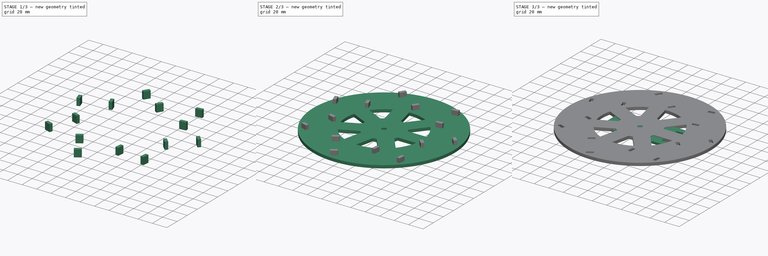
[diagram: build sequence overview — one tinted view per stage of 3, left to right]
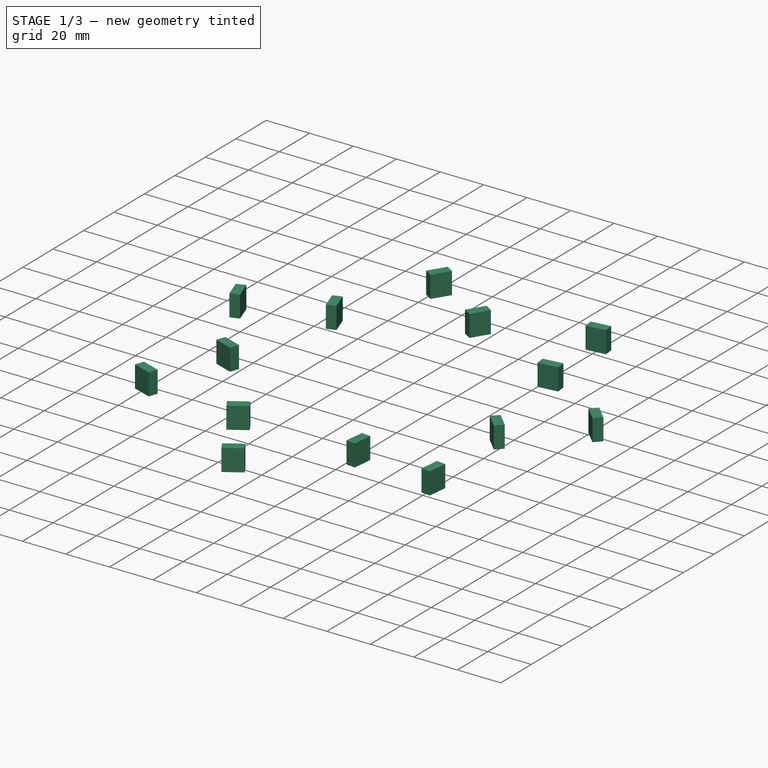
[diagram: stage 1 of 3 — iso view after this stage's code; geometry added in this stage tinted green]
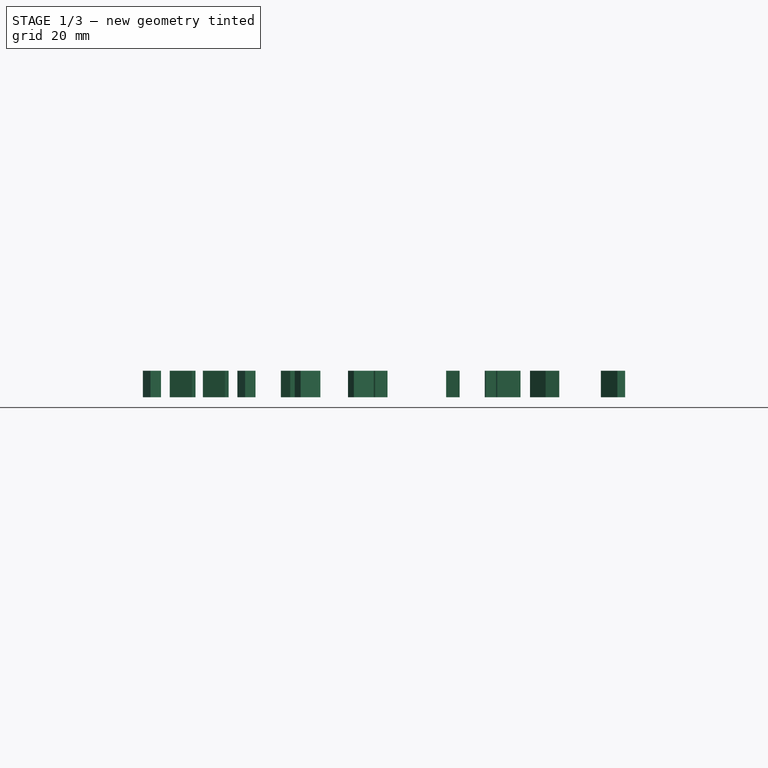
[diagram: stage 1 of 3 — front view after this stage's code; geometry added in this stage tinted green]
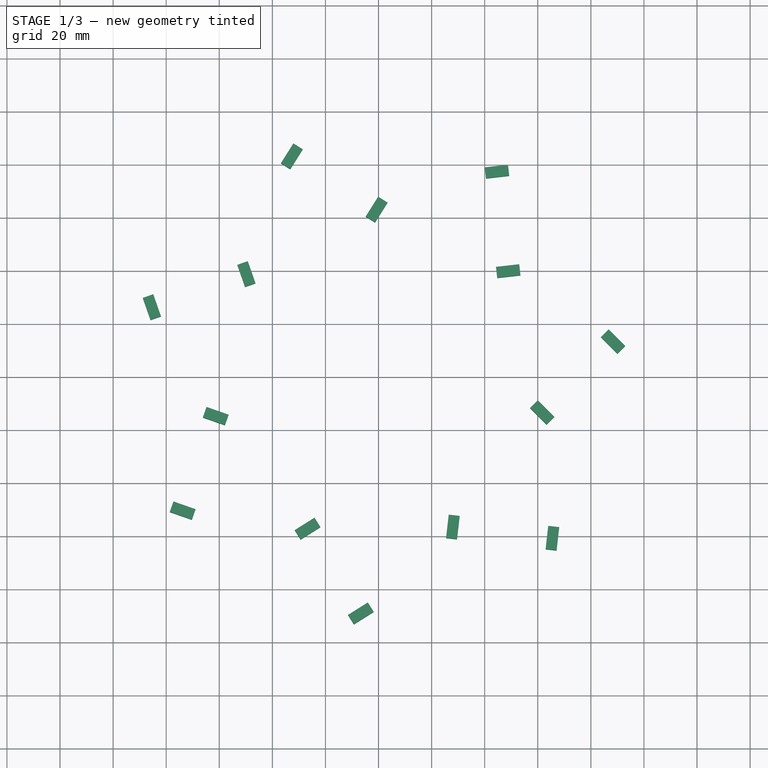
[diagram: stage 1 of 3 — top view after this stage's code; geometry added in this stage tinted green]
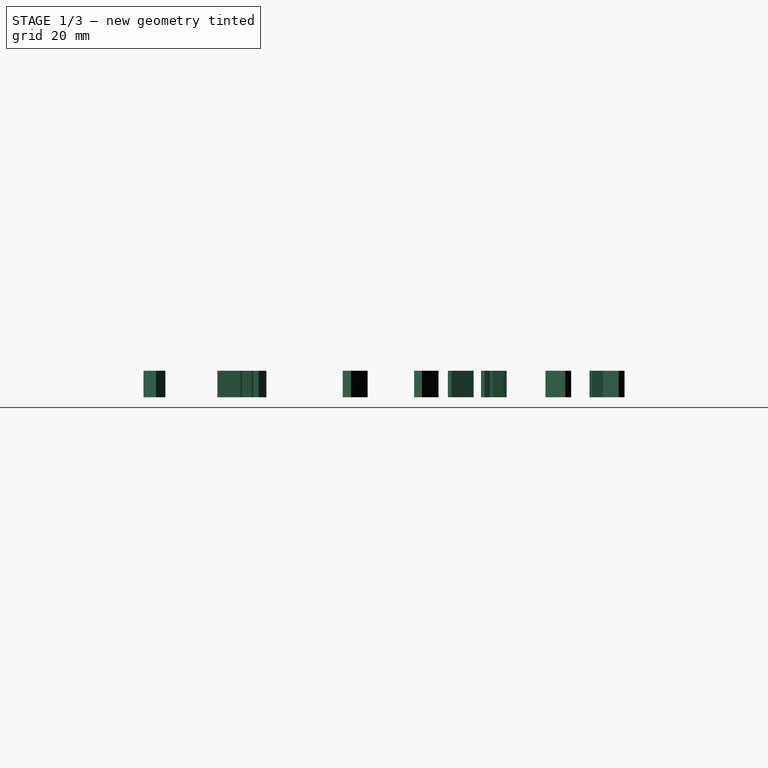
[diagram: stage 1 of 3 — right view after this stage's code; geometry added in this stage tinted green]
FCSTD DOCUMENT  (FreeCAD 0.22R35994 (Git))
Label: purifier_wheel
License: All rights reserved
LicenseURL: http://en.wikipedia.org/wiki/All_rights_reserved
objects: Part::FeaturePython×7, Sketcher::SketchObject×4, Part::Mirroring×2, PartDesign::SubShapeBinder×2, PartDesign::Pad×2, Part::Compound×2, PartDesign::Body×2, Part::Extrusion×1, PartDesign::Boolean×1
note: 25 computed .brp shape members not serialized (recipe doc carries the construction recipe); baked Part::Feature solids carry a one-line shape summary decoded from their .brp

FEATURE [PartDesign::Body] Body001
  Group = -> [Binder001,Pad001]
  Origin = -> Origin001
  Tip = -> Pad001
FEATURE [Sketcher::SketchObject] Sketch003
  FullyConstrained = false
  Placement = pos=(0,0,0) rot=(0,0,1;0.785398rad)
  expr: Constraints[22] = <<blade_base_sketch>>.Constraints.ledge_mid
  sketch-geometry (10):
    g0: LineSegment StartX=16.7843 StartY=4.4035 StartZ=0 EndX=16.7843 EndY=-4.4035 EndZ=0
    g1: LineSegment StartX=16.7843 StartY=-4.4035 StartZ=0 EndX=20.9488 EndY=-4.4035 EndZ=0
    g2: LineSegment StartX=20.9488 StartY=-4.4035 StartZ=0 EndX=20.9488 EndY=4.4035 EndZ=0
    g3: LineSegment StartX=20.9488 StartY=4.4035 StartZ=0 EndX=16.7843 EndY=4.4035 EndZ=0
    g4: GeomPoint X=18.8666 Y=0 Z=0
    g5: LineSegment StartX=-20.9488 StartY=4.4035 StartZ=0 EndX=-20.9488 EndY=-4.4035 EndZ=0
    g6: LineSegment StartX=-20.9488 StartY=-4.4035 StartZ=0 EndX=-16.7843 EndY=-4.4035 EndZ=0
    g7: LineSegment StartX=-16.7843 StartY=-4.4035 StartZ=0 EndX=-16.7843 EndY=4.4035 EndZ=0
    g8: LineSegment StartX=-16.7843 StartY=4.4035 StartZ=0 EndX=-20.9488 EndY=4.4035 EndZ=0
    g9: GeomPoint X=-18.8666 Y=0 Z=0
  constraints (23):
    c: Coincident(g0,g1)
    c: Coincident(g1,g2)
    c: Coincident(g2,g3)
    c: Coincident(g3,g0)
    c: Vertical(g0)
    c: Vertical(g2)
    c: Horizontal(g1)
    c: Horizontal(g3)
    c: Symmetric(g2,g0,g4)
    c: PointOnObject(g4,g-1)
    c: Coincident(g5,g6)
    c: Coincident(g6,g7)
    c: Coincident(g7,g8)
    c: Coincident(g8,g5)
    c: Vertical(g5)
    c: Vertical(g7)
    c: Horizontal(g6)
    c: Horizontal(g8)
    c: Symmetric(g7,g5,g9)
    c: Symmetric(g9,g4,g-2)
    c: Equal(g2,g7)
    c: Equal(g3,g8)
    c: DistanceX(g9,g4) = 37.7331
FEATURE [Part::FeaturePython] PolarArray002  # WARN: FeaturePython — macro-defined, semantics opaque (R4)
  Alignment = 0
  AttacherType = Attacher::AttachEngine3D
  CellStart = A1
  Count = 7
  DistributionLaw = 0
  EndInclusive = false
  ExposePlacement = false
  FlipX = false
  FlipZ = false
  GeneratorMode = 0
  MarkerShape = 1
  MarkerSize = 0
  NumElements = 7
  OrientMode = 2
  Radius = 75
  Reverse = false
  SpanEnd = 360
  SpanStart = 0
  Step = 51.4286
  Type = lattice2PolarArray2.PolarArray
  UseArcRadius = false
  UseArcRange = 0
  VSGVersion = 1
  Values = 0.0 | 51.42857142857143 | 102.85714285714286 | 154.28571428571428 | 205.71428571428572 | 257.14285714285717 | 308.57142857142856
  ValuesSource = 2
  isLattice = 1
  expr: Radius = <<Sketch>>.Constraints.outer_max_d / 2 - <<Sketch>>.Constraints.outer_thickness / 2
FEATURE [Part::Extrusion] Extrude
  Base = -> Sketch003
  Dir = (0,0,1)
  DirMode = 2
  FaceMakerClass = Part::FaceMakerBullseye
  LengthFwd = 10
  LengthRev = 0
  Solid = true
  Symmetric = false
FEATURE [Part::FeaturePython] Populate002  label="Populate PolarArray002 with Sketch003"  # WARN: FeaturePython — macro-defined, semantics opaque (R4)
  Copying = 0
  ExposePlacement = false
  MarkerShape = 1
  MarkerSize = 0
  NumElements = 0
  Object = -> Extrude
  OutputCompounding = 1
  PlacementsTo = -> PolarArray002
  Referencing = 0
  Type = lattice2PopulateCopies.LatticePopulateCopies
  isLattice = 0
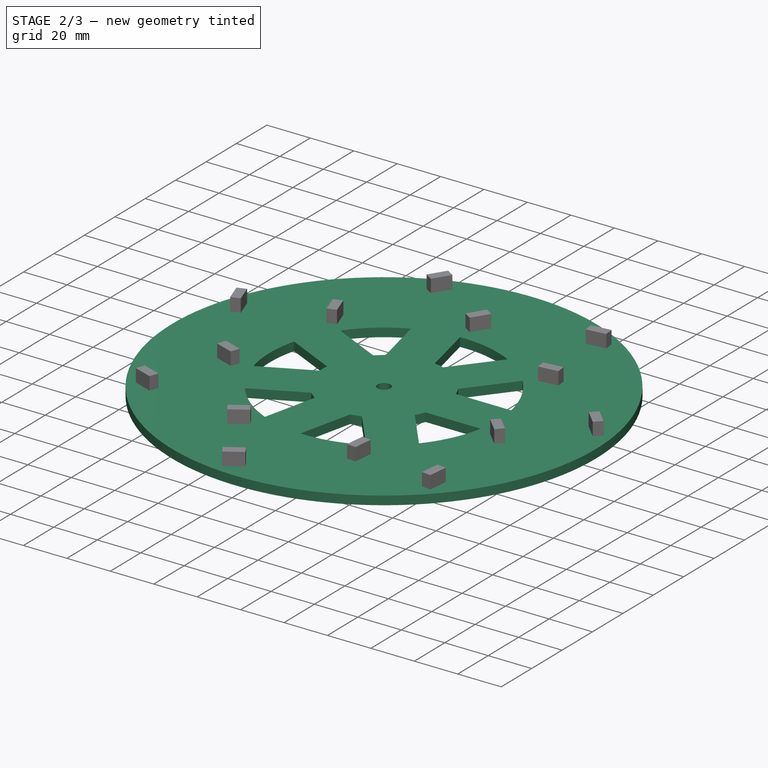
[diagram: stage 2 of 3 — iso view after this stage's code; geometry added in this stage tinted green]
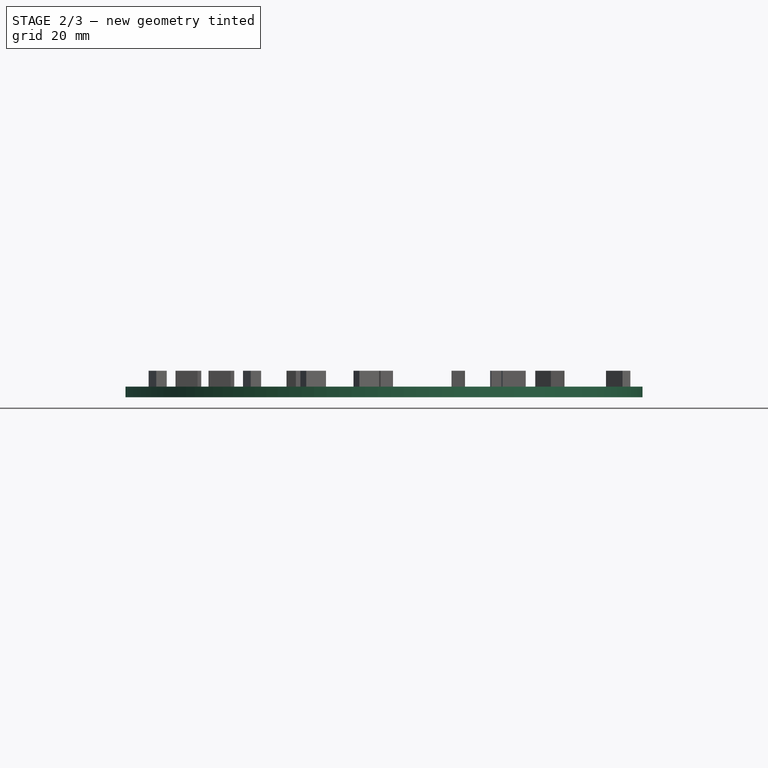
[diagram: stage 2 of 3 — front view after this stage's code; geometry added in this stage tinted green]
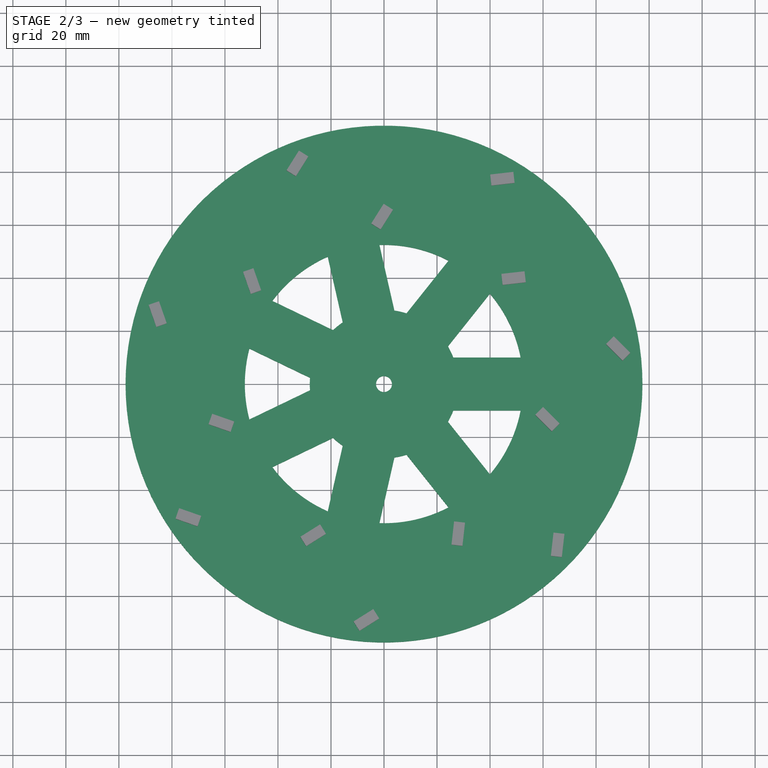
[diagram: stage 2 of 3 — top view after this stage's code; geometry added in this stage tinted green]
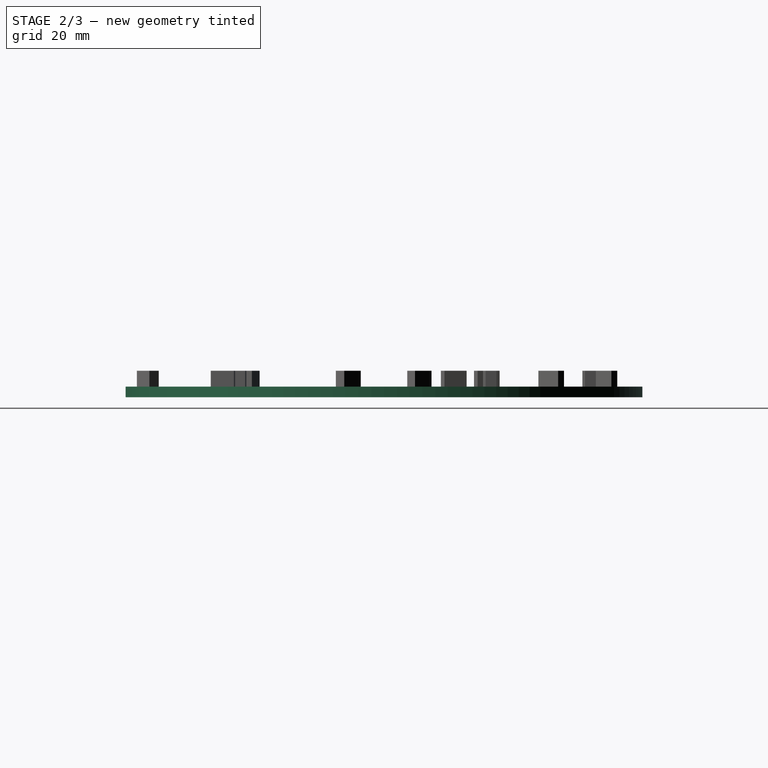
[diagram: stage 2 of 3 — right view after this stage's code; geometry added in this stage tinted green]
FEATURE [Part::FeaturePython] PolarArray  # WARN: FeaturePython — macro-defined, semantics opaque (R4)
  Alignment = 0
  AttacherType = Attacher::AttachEngine3D
  CellStart = A1
  Count = 7
  DistributionLaw = 0
  EndInclusive = false
  ExposePlacement = false
  FlipX = false
  FlipZ = false
  GeneratorMode = 0
  MarkerShape = 1
  MarkerSize = 0
  NumElements = 7
  OrientMode = 2
  Placement = pos=(0,0,0) rot=(0,0,1;0.448799rad)
  Radius = 100
  Reverse = false
  SpanEnd = 360
  SpanStart = 0
  Step = 51.4286
  Type = lattice2PolarArray2.PolarArray
  UseArcRadius = false
  UseArcRange = 0
  VSGVersion = 1
  Values = 0.0 | 51.42857142857143 | 102.85714285714286 | 154.28571428571428 | 205.71428571428572 | 257.14285714285717 | 308.57142857142856
  ValuesSource = 2
  isLattice = 1
  expr: .Placement.Rotation.Angle = 360 deg / NumElements / 2
FEATURE [Sketcher::SketchObject] Sketch
  ExternalGeometry = -> [PolarArray]
  FullyConstrained = true
  expr: Constraints[7] = 360 / <<PolarArray>>.NumElements / 2
  sketch-geometry (6):
    g0: ArcOfCircle CenterX=0 CenterY=0 CenterZ=0 NormalX=0 NormalY=0 NormalZ=1 AngleXU=0 Radius=3 StartAngle=0 EndAngle=0.448799
    g1: LineSegment StartX=2.70291 StartY=1.30165 StartZ=0 EndX=87.8445 EndY=42.3037 EndZ=0
    g2: ArcOfCircle CenterX=0 CenterY=0 CenterZ=0 NormalX=0 NormalY=0 NormalZ=1 AngleXU=0 Radius=97.5 StartAngle=0 EndAngle=0.448799
    g3: LineSegment StartX=26.1534 StartY=10 StartZ=0 EndX=51.5388 EndY=10 EndZ=0
    g4: ArcOfCircle CenterX=0 CenterY=0 CenterZ=0 NormalX=0 NormalY=0 NormalZ=1 AngleXU=0 Radius=28 StartAngle=0.365207 EndAngle=0.448799
    g5: ArcOfCircle CenterX=0 CenterY=0 CenterZ=0 NormalX=0 NormalY=0 NormalZ=1 AngleXU=0 Radius=52.5 StartAngle=0.191647 EndAngle=0.448799
  constraints (20):
    c: Coincident(g0,g-1)
    c: PointOnObject(g0,g-1)
    c: Coincident(g1,g0)
    c: Coincident(g2,g0)
    c: Coincident(g2,g1)
    c: PointOnObject(g2,g-1)
    c: PointOnObject(g0,g1)
    c: Angle(g1) = 0.448799
    c: Horizontal(g3)
    c: Coincident(g4,g0)
    c: Coincident(g4,g3)
    c: PointOnObject(g4,g1)
    c: Coincident(g5,g0)
    c: Coincident(g5,g3)
    c: PointOnObject(g5,g1)
    c: Diameter(g2) = 195  'outer_max_d'
    c: Distance(g5,g2) = 45  'outer_thickness'
    c: DistanceY(g3) = 10
    c: DistanceX(g0) = 3  'inner_r'
    c: Distance(g0,g4) = 25  'inner_circle_thickness'
FEATURE [Part::Mirroring] Part__Mirroring  label="Sketch (Mirror #1)"
  Base = (0,0,0)
  Normal = (0,1,0)
  Source = -> Sketch
FEATURE [Part::FeaturePython] Connect  # WARN: FeaturePython — macro-defined, semantics opaque (R4)
  Objects = -> [Part__Mirroring,Sketch]
  Tolerance = 0
FEATURE [Sketcher::SketchObject] Sketch001
  FullyConstrained = false
  sketch-geometry (1):
    g0: Circle CenterX=0 CenterY=0 CenterZ=0 NormalX=0 NormalY=0 NormalZ=1 AngleXU=0 Radius=16.3843
  constraints (1):
    c: Coincident(g0,g-1)
FEATURE [Part::FeaturePython] Populate  label="Populate PolarArray with Connect"  # WARN: FeaturePython — macro-defined, semantics opaque (R4)
  Copying = 0
  ExposePlacement = false
  MarkerShape = 1
  MarkerSize = 0
  NumElements = 0
  Object = -> Connect
  OutputCompounding = 1
  PlacementsTo = -> PolarArray
  Referencing = 1
  Type = lattice2PopulateCopies.LatticePopulateCopies
  isLattice = 0
FEATURE [PartDesign::SubShapeBinder] Binder
  BindCopyOnChange = 0
  BindMode = 0
  ClaimChildren = true
  Context = -> Body [Binder.]
  Fuse = false
  MakeFace = true
  OffsetFill = false
  OffsetIntersection = false
  OffsetJoinType = 0
  OffsetOpenResult = false
  PartialLoad = false
  Relative = true
  Support = -> [Populate]
  _Version = 2
FEATURE [PartDesign::Pad] Pad
  Direction = (0,0,1)
  Length = 4
  Length2 = 10
  Profile = -> Binder
  Refine = true
  Suppressed = false
  Type = 0
FEATURE [Part::Compound] Compound001
  Links = -> [Populate002]
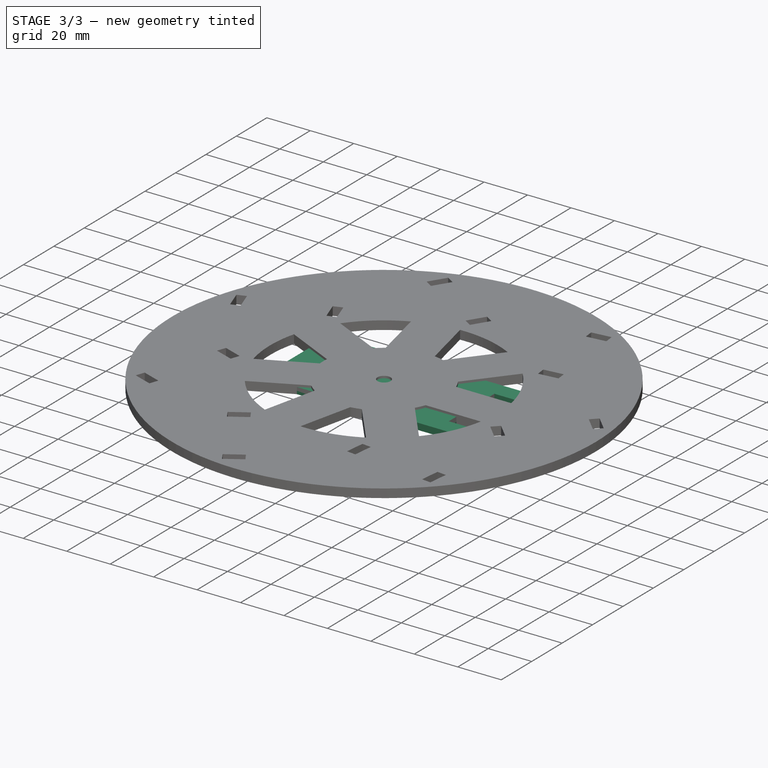
[diagram: stage 3 of 3 — iso view after this stage's code; geometry added in this stage tinted green]
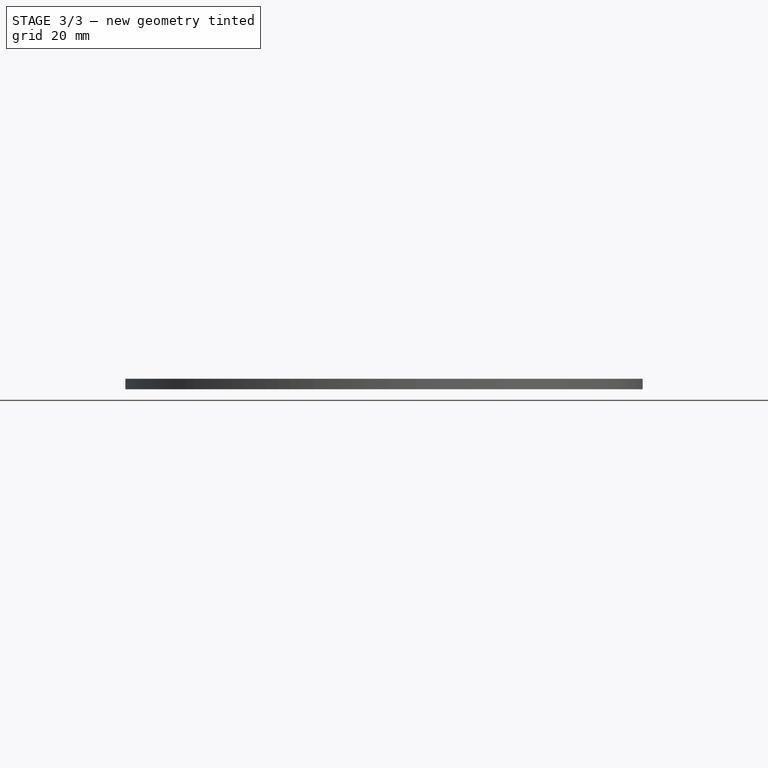
[diagram: stage 3 of 3 — front view after this stage's code; geometry added in this stage tinted green]
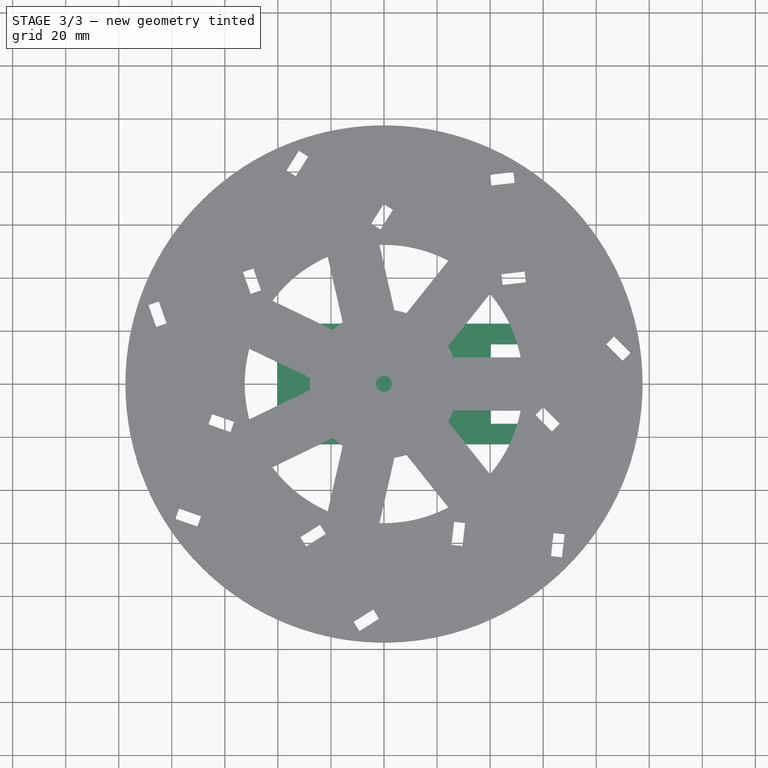
[diagram: stage 3 of 3 — top view after this stage's code; geometry added in this stage tinted green]
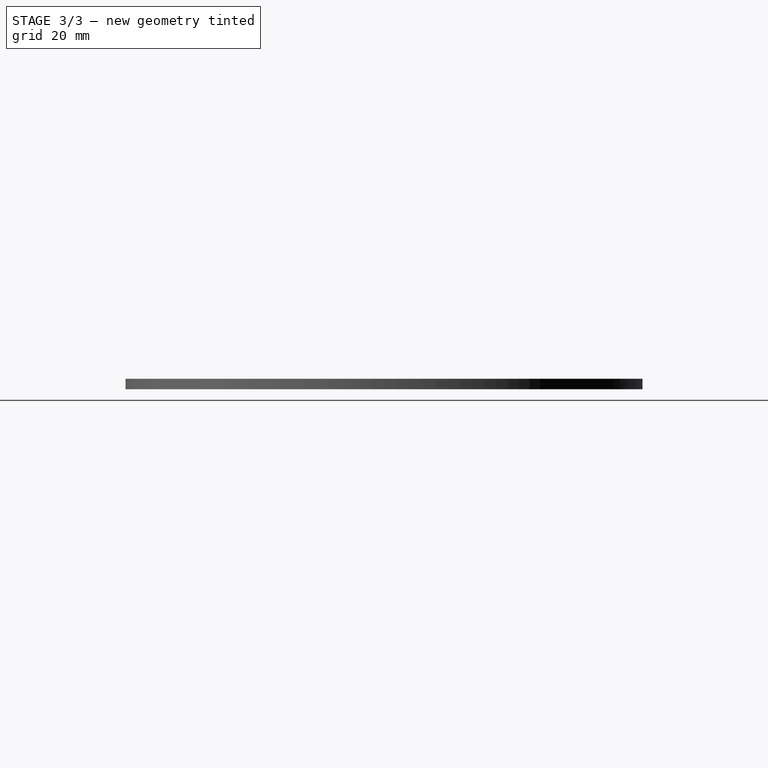
[diagram: stage 3 of 3 — right view after this stage's code; geometry added in this stage tinted green]
FEATURE [Sketcher::SketchObject] Sketch002  label="blade_base_sketch"
  FullyConstrained = true
  sketch-geometry (8):
    g0: LineSegment StartX=0 StartY=22.7491 StartZ=0 EndX=50.9043 EndY=22.7491 EndZ=0
    g1: LineSegment StartX=50.9043 StartY=22.7491 StartZ=0 EndX=50.9043 EndY=14.984 EndZ=0
    g2: LineSegment StartX=50.9043 StartY=14.984 StartZ=0 EndX=40.3156 EndY=14.984 EndZ=0
    g3: LineSegment StartX=40.3156 StartY=14.984 StartZ=0 EndX=40.3156 EndY=0 EndZ=0
    g4: GeomPoint X=50.9043 Y=18.8666 Z=0
    g5: GeomPoint X=50.9043 Y=-18.8666 Z=0
    g6: GeomPoint X=0 Y=-22.7491 Z=0
    g7: GeomPoint X=-40.3156 Y=0 Z=0
  constraints (18):
    c: PointOnObject(g0,g-2)
    c: Horizontal(g0)
    c: Coincident(g0,g1)
    c: Vertical(g1)
    c: Coincident(g1,g2)
    c: Horizontal(g2)
    c: Coincident(g2,g3)
    c: PointOnObject(g3,g-1)
    c: Vertical(g3)
    c: Distance(g1) = 7.765  'ledge_width'
    c: DistanceX(g2,g1) = 10.5887  'ledge_length'
    c: Symmetric(g1,g0,g4)
    c: Symmetric(g5,g4,g-1)
    c: Symmetric(g7,g3,g-2)
    c: Symmetric(g6,g0,g-1)
    c: DistanceY(g6,g0) = 45.4981  'width'
    c: DistanceX(g7,g3) = 80.6312  'length'
    c: DistanceY(g5,g4) = 37.7331  'ledge_mid'
FEATURE [Part::Mirroring] Part__Mirroring001  label="Sketch002 (Mirror #2)"
  Base = (0,0,0)
  Normal = (0,1,0)
  Source = -> Sketch002
FEATURE [Part::Compound] Compound
  Links = -> [Part__Mirroring001,Sketch002]
FEATURE [Part::FeaturePython] PolarArray001  # WARN: FeaturePython — macro-defined, semantics opaque (R4)
  Alignment = 0
  AttacherType = Attacher::AttachEngine3D
  CellStart = A1
  Count = 2
  DistributionLaw = 0
  EndInclusive = false
  ExposePlacement = false
  FlipX = false
  FlipZ = false
  GeneratorMode = 0
  MarkerShape = 1
  MarkerSize = 0
  NumElements = 2
  OrientMode = 2
  Radius = 100
  Reverse = false
  SpanEnd = 360
  SpanStart = 0
  Step = 180
  Type = lattice2PolarArray2.PolarArray
  UseArcRadius = false
  UseArcRange = 0
  VSGVersion = 1
  Values = 0.0 | 180.0
  ValuesSource = 2
  isLattice = 1
FEATURE [Part::FeaturePython] Populate001  label="Populate PolarArray001 with Compound"  # WARN: FeaturePython — macro-defined, semantics opaque (R4)
  Copying = 0
  ExposePlacement = false
  MarkerShape = 1
  MarkerSize = 0
  NumElements = 0
  Object = -> Compound
  OutputCompounding = 1
  PlacementsTo = -> PolarArray001
  Referencing = 1
  Type = lattice2PopulateCopies.LatticePopulateCopies
  isLattice = 0
FEATURE [PartDesign::SubShapeBinder] Binder001
  BindCopyOnChange = 0
  BindMode = 0
  ClaimChildren = true
  Context = -> Body001 [Binder001.]
  Fuse = false
  MakeFace = true
  OffsetFill = false
  OffsetIntersection = false
  OffsetJoinType = 0
  OffsetOpenResult = false
  PartialLoad = false
  Relative = false
  Support = -> [Populate001]
  _Version = 2
FEATURE [PartDesign::Pad] Pad001
  Direction = (0,0,1)
  Length = 3
  Length2 = 10
  Profile = -> Binder001
  Suppressed = false
  Type = 0
FEATURE [PartDesign::Boolean] Boolean
  BaseFeature = -> Pad
  Group = -> [Compound001]
  Suppressed = false
  Type = 1
  UsePlacement = true
FEATURE [PartDesign::Body] Body
  Group = -> [Binder,Pad,Boolean]
  Origin = -> Origin
  Tip = -> Boolean
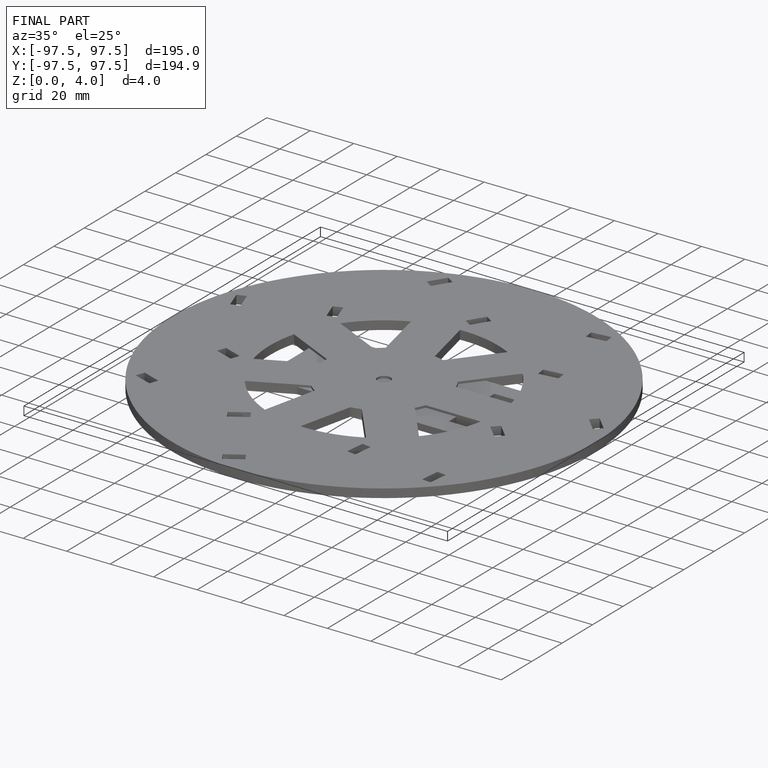
[diagram: finished part — iso view with bounding-box wireframe]
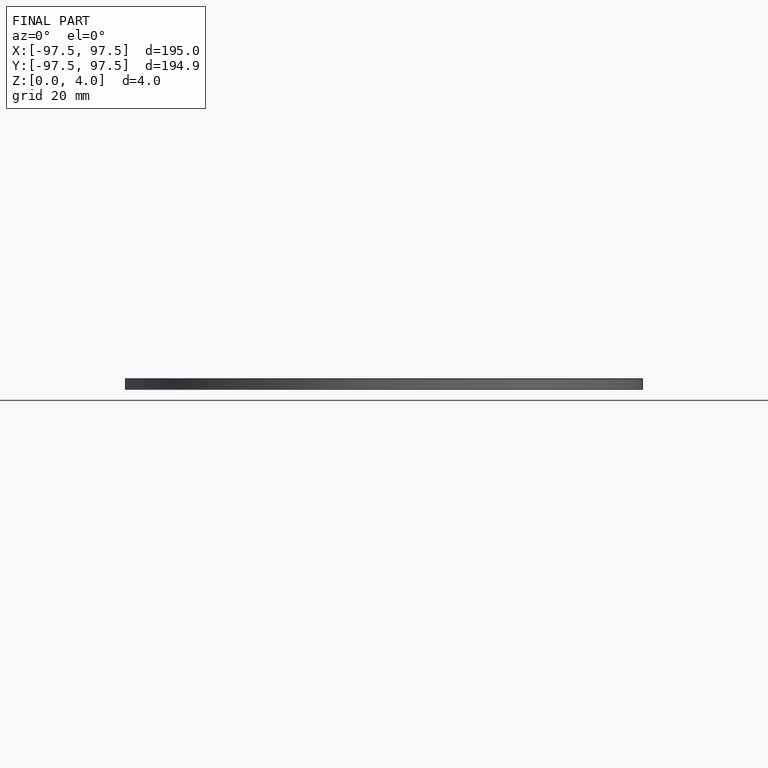
[diagram: finished part — front view with bounding-box wireframe]
